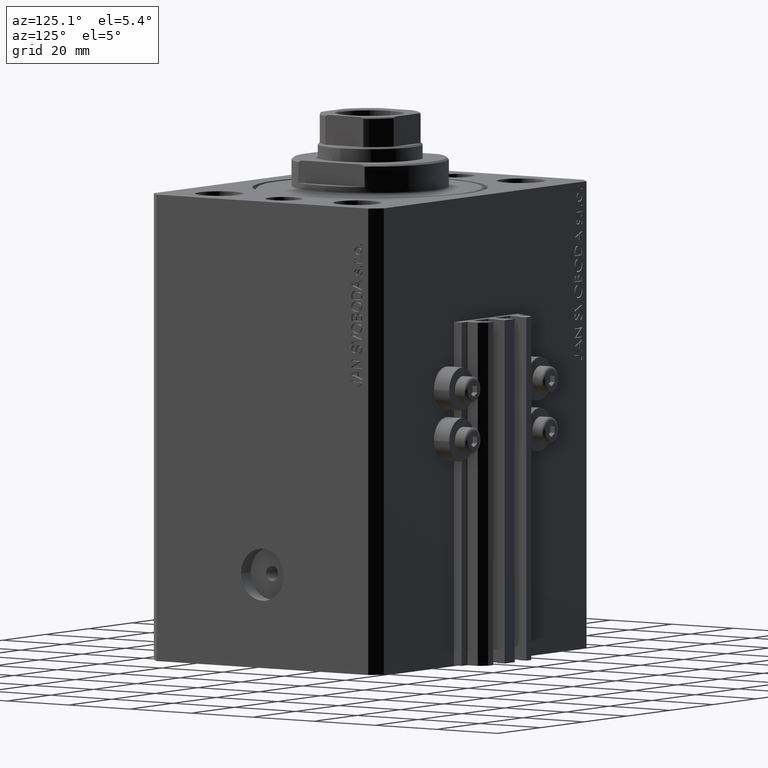
[diagram: clean part render]
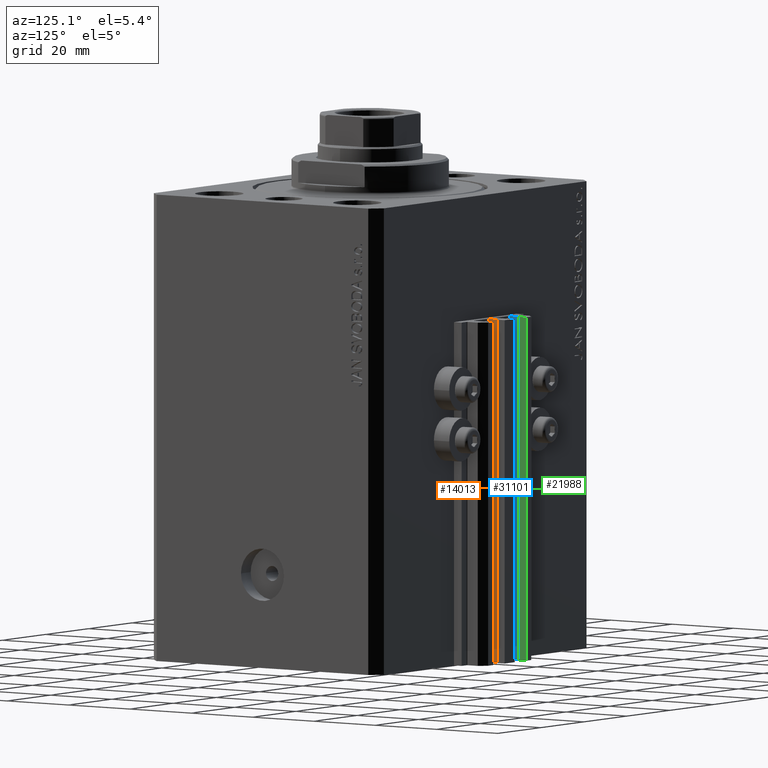
[diagram: same view with three faces highlighted in distinct colors, each labeled with its STEP entity id]
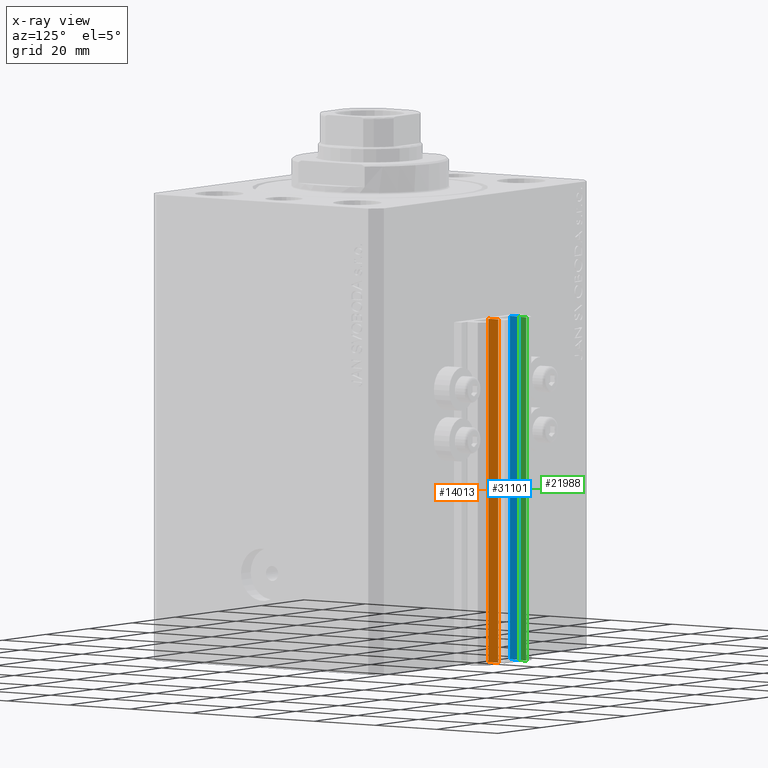
[diagram: x-ray of the same camera — body ghosted, the three highlighted faces saturated]
A machine part, auxiliary view with three faces highlighted in distinct colors.
The next image is the same camera in x-ray (body ghosted, the three faces saturated) — at least one of them is partly hidden behind the body in this view.
Their STEP definitions:

[orange] entity #14013 — the highlighted planar face has unit normal (1, 0, 0).
#1378 = ORIENTED_EDGE ( 'NONE', *, *, #6781, .T. ) ;
#1607 = CARTESIAN_POINT ( 'NONE',  ( 1.600000000000000533, 39.69999999999999574, -125.0000000000000000 ) ) ;
#1625 = VECTOR ( 'NONE', #21637, 1000.000000000000000 ) ;
#2031 = LINE ( 'NONE', #12768, #42314 ) ;
#2548 = DIRECTION ( 'NONE',  ( 0.000000000000000000, 0.000000000000000000, -1.000000000000000000 ) ) ;
#2686 = VECTOR ( 'NONE', #20388, 1000.000000000000000 ) ;
#5254 = CARTESIAN_POINT ( 'NONE',  ( 1.600000000000001421, 39.69999999999999574, -125.0000000000000000 ) ) ;
#6781 = EDGE_CURVE ( 'NONE', #44502, #39044, #7091, .T. ) ;
#7091 = LINE ( 'NONE', #28818, #1625 ) ;
#7681 = EDGE_CURVE ( 'NONE', #28604, #39044, #14032, .T. ) ;
#8225 = ORIENTED_EDGE ( 'NONE', *, *, #17704, .F. ) ;
#8990 = DIRECTION ( 'NONE',  ( 1.000000000000000000, 0.000000000000000000, 0.000000000000000000 ) ) ;
#12768 = CARTESIAN_POINT ( 'NONE',  ( 1.600000000000000533, 39.69999999999999574, -125.0000000000000000 ) ) ;
#14013 = ADVANCED_FACE ( 'NONE', ( #20674 ), #41697, .T. ) ;
#14032 = LINE ( 'NONE', #28589, #35960 ) ;
#14630 = CARTESIAN_POINT ( 'NONE',  ( 1.600000000000001421, 39.69999999999999574, -33.00000000000000000 ) ) ;
#17690 = EDGE_CURVE ( 'NONE', #45814, #44502, #2031, .T. ) ;
#17704 = EDGE_CURVE ( 'NONE', #45814, #28604, #27324, .T. ) ;
#20388 = DIRECTION ( 'NONE',  ( 0.000000000000000000, 0.000000000000000000, 1.000000000000000000 ) ) ;
#20445 = CARTESIAN_POINT ( 'NONE',  ( 1.600000000000000533, 42.90000000000000568, -33.00000000000000000 ) ) ;
#20674 = FACE_OUTER_BOUND ( 'NONE', #30015, .T. ) ;
#21637 = DIRECTION ( 'NONE',  ( 0.000000000000000000, 0.000000000000000000, 1.000000000000000000 ) ) ;
#23877 = ORIENTED_EDGE ( 'NONE', *, *, #7681, .F. ) ;
#27324 = LINE ( 'NONE', #44763, #2686 ) ;
#28589 = CARTESIAN_POINT ( 'NONE',  ( 1.600000000000000533, 39.69999999999999574, -33.00000000000000000 ) ) ;
#28604 = VERTEX_POINT ( 'NONE', #14630 ) ;
#28818 = CARTESIAN_POINT ( 'NONE',  ( 1.600000000000000533, 42.90000000000000568, -125.0000000000000000 ) ) ;
#30015 = EDGE_LOOP ( 'NONE', ( #23877, #8225, #35255, #1378 ) ) ;
#35255 = ORIENTED_EDGE ( 'NONE', *, *, #17690, .T. ) ;
#35960 = VECTOR ( 'NONE', #43165, 1000.000000000000000 ) ;
#36953 = AXIS2_PLACEMENT_3D ( 'NONE', #1607, #8990, #2548 ) ;
#37553 = CARTESIAN_POINT ( 'NONE',  ( 1.600000000000000533, 42.90000000000000568, -125.0000000000000000 ) ) ;
#38072 = DIRECTION ( 'NONE',  ( 0.000000000000000000, 1.000000000000000000, 0.000000000000000000 ) ) ;
#39044 = VERTEX_POINT ( 'NONE', #20445 ) ;
#41697 = PLANE ( 'NONE',  #36953 ) ;
#42314 = VECTOR ( 'NONE', #38072, 1000.000000000000000 ) ;
#43165 = DIRECTION ( 'NONE',  ( 0.000000000000000000, 1.000000000000000000, 0.000000000000000000 ) ) ;
#44502 = VERTEX_POINT ( 'NONE', #37553 ) ;
#44763 = CARTESIAN_POINT ( 'NONE',  ( 1.600000000000001421, 39.69999999999999574, -125.0000000000000000 ) ) ;
#45814 = VERTEX_POINT ( 'NONE', #5254 ) ;

[blue] entity #31101 — the highlighted planar face has unit normal (1, 0, 0).
#2715 = PLANE ( 'NONE',  #5945 ) ;
#5945 = AXIS2_PLACEMENT_3D ( 'NONE', #10113, #42823, #14399 ) ;
#6075 = ORIENTED_EDGE ( 'NONE', *, *, #26767, .T. ) ;
#6551 = CARTESIAN_POINT ( 'NONE',  ( -8.399999999999996803, 39.69999999999999574, -33.00000000000000000 ) ) ;
#6722 = CARTESIAN_POINT ( 'NONE',  ( -8.400000000000000355, 42.89999999999999147, -33.00000000000000000 ) ) ;
#6978 = LINE ( 'NONE', #17935, #29348 ) ;
#8221 = VECTOR ( 'NONE', #17050, 1000.000000000000000 ) ;
#10113 = CARTESIAN_POINT ( 'NONE',  ( -8.399999999999996803, 39.69999999999999574, -125.0000000000000000 ) ) ;
#10328 = DIRECTION ( 'NONE',  ( 0.000000000000000000, 0.000000000000000000, 1.000000000000000000 ) ) ;
#10533 = CARTESIAN_POINT ( 'NONE',  ( -8.400000000000000355, 42.89999999999999147, -125.0000000000000000 ) ) ;
#11836 = CARTESIAN_POINT ( 'NONE',  ( -8.399999999999996803, 39.69999999999999574, -125.0000000000000000 ) ) ;
#11884 = ORIENTED_EDGE ( 'NONE', *, *, #13008, .F. ) ;
#13008 = EDGE_CURVE ( 'NONE', #34838, #35677, #25423, .T. ) ;
#13729 = LINE ( 'NONE', #6551, #8221 ) ;
#13931 = FACE_OUTER_BOUND ( 'NONE', #35317, .T. ) ;
#14399 = DIRECTION ( 'NONE',  ( -1.084202172485506406E-15, 1.000000000000000000, 0.000000000000000000 ) ) ;
#15445 = CARTESIAN_POINT ( 'NONE',  ( -8.399999999999996803, 39.69999999999999574, -125.0000000000000000 ) ) ;
#17050 = DIRECTION ( 'NONE',  ( -1.084202172485506406E-15, 1.000000000000000000, 0.000000000000000000 ) ) ;
#17935 = CARTESIAN_POINT ( 'NONE',  ( -8.400000000000000355, 42.89999999999999147, -125.0000000000000000 ) ) ;
#17969 = EDGE_CURVE ( 'NONE', #37264, #30435, #6978, .T. ) ;
#23329 = ORIENTED_EDGE ( 'NONE', *, *, #17969, .T. ) ;
#24990 = EDGE_CURVE ( 'NONE', #35677, #30435, #13729, .T. ) ;
#25423 = LINE ( 'NONE', #37095, #26174 ) ;
#25893 = DIRECTION ( 'NONE',  ( 0.000000000000000000, 0.000000000000000000, 1.000000000000000000 ) ) ;
#26174 = VECTOR ( 'NONE', #25893, 1000.000000000000000 ) ;
#26767 = EDGE_CURVE ( 'NONE', #34838, #37264, #44354, .T. ) ;
#27710 = ORIENTED_EDGE ( 'NONE', *, *, #24990, .F. ) ;
#29348 = VECTOR ( 'NONE', #10328, 1000.000000000000000 ) ;
#30435 = VERTEX_POINT ( 'NONE', #6722 ) ;
#31101 = ADVANCED_FACE ( 'NONE', ( #13931 ), #2715, .T. ) ;
#32752 = VECTOR ( 'NONE', #44581, 1000.000000000000000 ) ;
#34838 = VERTEX_POINT ( 'NONE', #11836 ) ;
#35317 = EDGE_LOOP ( 'NONE', ( #27710, #11884, #6075, #23329 ) ) ;
#35677 = VERTEX_POINT ( 'NONE', #36677 ) ;
#36677 = CARTESIAN_POINT ( 'NONE',  ( -8.399999999999996803, 39.69999999999999574, -33.00000000000000000 ) ) ;
#37095 = CARTESIAN_POINT ( 'NONE',  ( -8.399999999999996803, 39.69999999999999574, -125.0000000000000000 ) ) ;
#37264 = VERTEX_POINT ( 'NONE', #10533 ) ;
#42823 = DIRECTION ( 'NONE',  ( 1.000000000000000000, 1.084202172485506406E-15, -0.000000000000000000 ) ) ;
#44354 = LINE ( 'NONE', #15445, #32752 ) ;
#44581 = DIRECTION ( 'NONE',  ( -1.084202172485506406E-15, 1.000000000000000000, 0.000000000000000000 ) ) ;

[green] entity #21988 — the highlighted planar face has unit normal (1, 0, 0).
#1269 = CARTESIAN_POINT ( 'NONE',  ( -7.650000000000002132, 43.09999999999999432, -125.0000000000000000 ) ) ;
#1676 = DIRECTION ( 'NONE',  ( 0.000000000000000000, 0.000000000000000000, 1.000000000000000000 ) ) ;
#2147 = CARTESIAN_POINT ( 'NONE',  ( -7.650000000000002132, 45.49999999999999289, -125.0000000000000000 ) ) ;
#4810 = CARTESIAN_POINT ( 'NONE',  ( -7.650000000000002132, 45.49999999999999289, -33.00000000000000000 ) ) ;
#5498 = DIRECTION ( 'NONE',  ( 0.000000000000000000, 1.000000000000000000, 0.000000000000000000 ) ) ;
#5662 = ORIENTED_EDGE ( 'NONE', *, *, #35214, .T. ) ;
#11126 = VERTEX_POINT ( 'NONE', #4810 ) ;
#15467 = CARTESIAN_POINT ( 'NONE',  ( -7.650000000000002132, 43.09999999999999432, -33.00000000000000000 ) ) ;
#15986 = CARTESIAN_POINT ( 'NONE',  ( -7.650000000000002132, 43.09999999999999432, -33.00000000000000000 ) ) ;
#16054 = LINE ( 'NONE', #1269, #26266 ) ;
#18351 = LINE ( 'NONE', #33856, #41557 ) ;
#18353 = EDGE_CURVE ( 'NONE', #36284, #25225, #18351, .T. ) ;
#19817 = CARTESIAN_POINT ( 'NONE',  ( -7.650000000000002132, 43.09999999999999432, -125.0000000000000000 ) ) ;
#20052 = FACE_OUTER_BOUND ( 'NONE', #35236, .T. ) ;
#21988 = ADVANCED_FACE ( 'NONE', ( #20052 ), #23870, .T. ) ;
#23104 = DIRECTION ( 'NONE',  ( 0.000000000000000000, 0.000000000000000000, 1.000000000000000000 ) ) ;
#23870 = PLANE ( 'NONE',  #43990 ) ;
#25225 = VERTEX_POINT ( 'NONE', #15467 ) ;
#25768 = VECTOR ( 'NONE', #5498, 1000.000000000000000 ) ;
#26266 = VECTOR ( 'NONE', #44717, 1000.000000000000000 ) ;
#27264 = VECTOR ( 'NONE', #1676, 1000.000000000000000 ) ;
#27676 = LINE ( 'NONE', #2147, #27264 ) ;
#29795 = EDGE_CURVE ( 'NONE', #37717, #11126, #27676, .T. ) ;
#30597 = EDGE_CURVE ( 'NONE', #25225, #11126, #41777, .T. ) ;
#31280 = DIRECTION ( 'NONE',  ( 1.000000000000000000, 0.000000000000000000, 0.000000000000000000 ) ) ;
#31296 = CARTESIAN_POINT ( 'NONE',  ( -7.650000000000002132, 43.09999999999999432, -125.0000000000000000 ) ) ;
#32049 = ORIENTED_EDGE ( 'NONE', *, *, #30597, .F. ) ;
#33856 = CARTESIAN_POINT ( 'NONE',  ( -7.650000000000002132, 43.09999999999999432, -125.0000000000000000 ) ) ;
#34385 = DIRECTION ( 'NONE',  ( 0.000000000000000000, 0.000000000000000000, -1.000000000000000000 ) ) ;
#35214 = EDGE_CURVE ( 'NONE', #36284, #37717, #16054, .T. ) ;
#35236 = EDGE_LOOP ( 'NONE', ( #32049, #37247, #5662, #46003 ) ) ;
#36284 = VERTEX_POINT ( 'NONE', #31296 ) ;
#37247 = ORIENTED_EDGE ( 'NONE', *, *, #18353, .F. ) ;
#37717 = VERTEX_POINT ( 'NONE', #46990 ) ;
#41557 = VECTOR ( 'NONE', #23104, 1000.000000000000000 ) ;
#41777 = LINE ( 'NONE', #15986, #25768 ) ;
#43990 = AXIS2_PLACEMENT_3D ( 'NONE', #19817, #31280, #34385 ) ;
#44717 = DIRECTION ( 'NONE',  ( 0.000000000000000000, 1.000000000000000000, 0.000000000000000000 ) ) ;
#46003 = ORIENTED_EDGE ( 'NONE', *, *, #29795, .T. ) ;
#46990 = CARTESIAN_POINT ( 'NONE',  ( -7.650000000000002132, 45.49999999999999289, -125.0000000000000000 ) ) ;